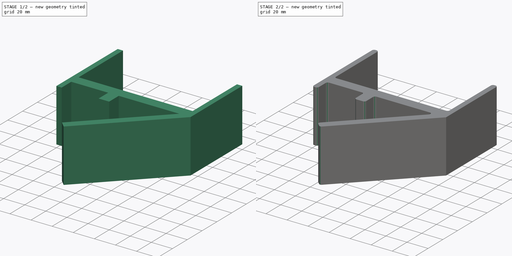
[diagram: build sequence overview — one tinted view per stage of 2, left to right]
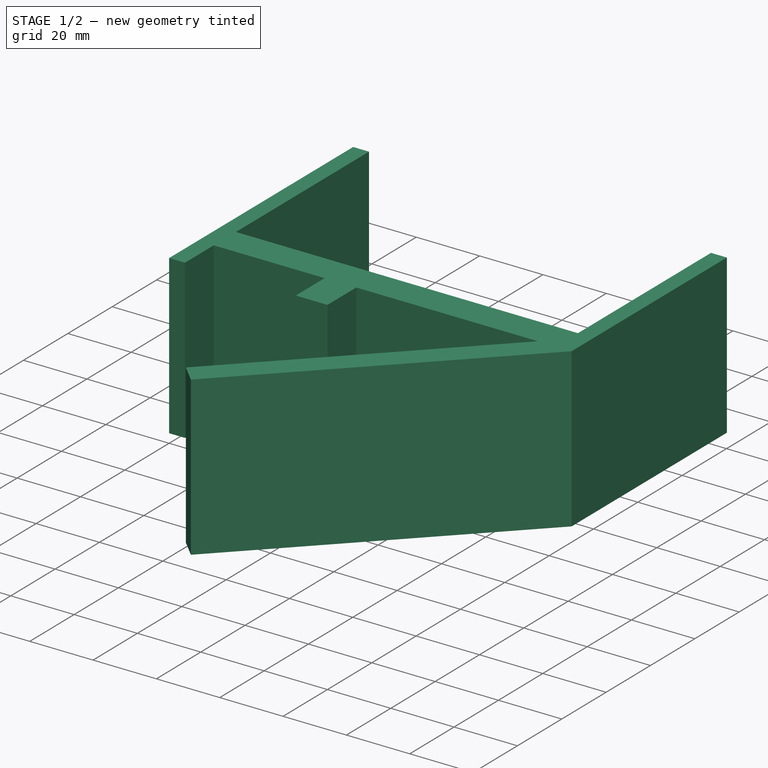
[diagram: stage 1 of 2 — iso view after this stage's code; geometry added in this stage tinted green]
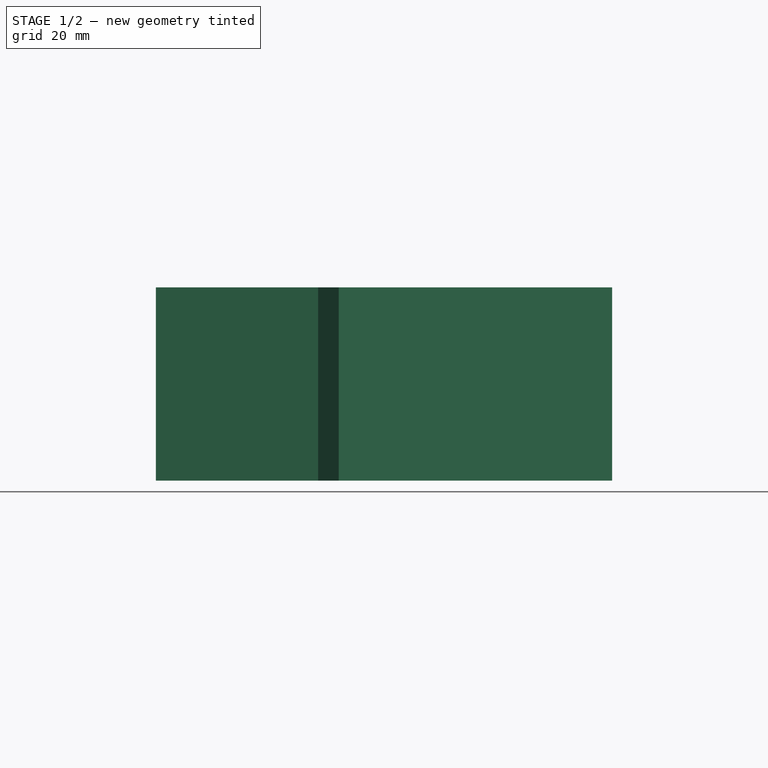
[diagram: stage 1 of 2 — front view after this stage's code; geometry added in this stage tinted green]
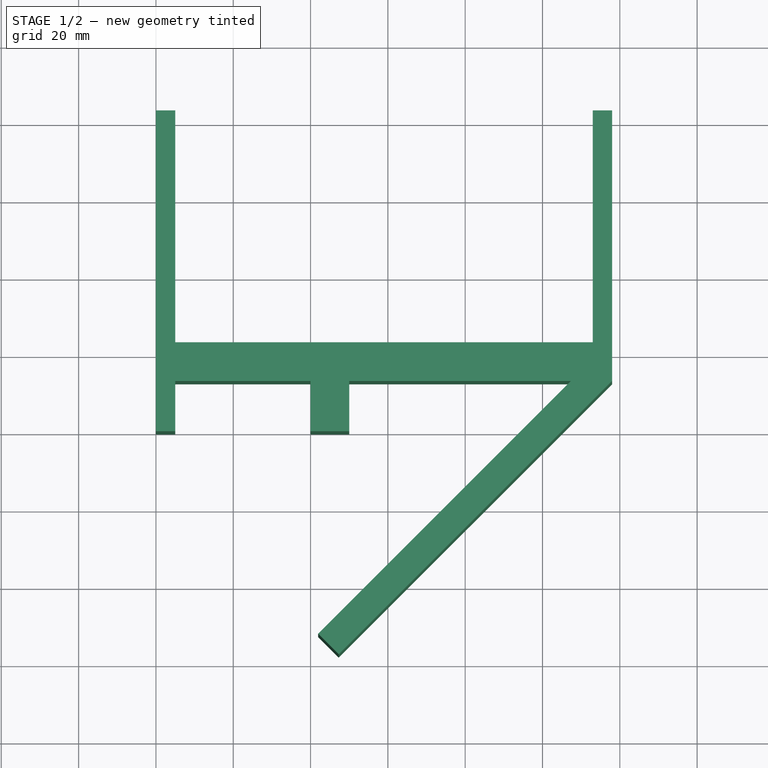
[diagram: stage 1 of 2 — top view after this stage's code; geometry added in this stage tinted green]
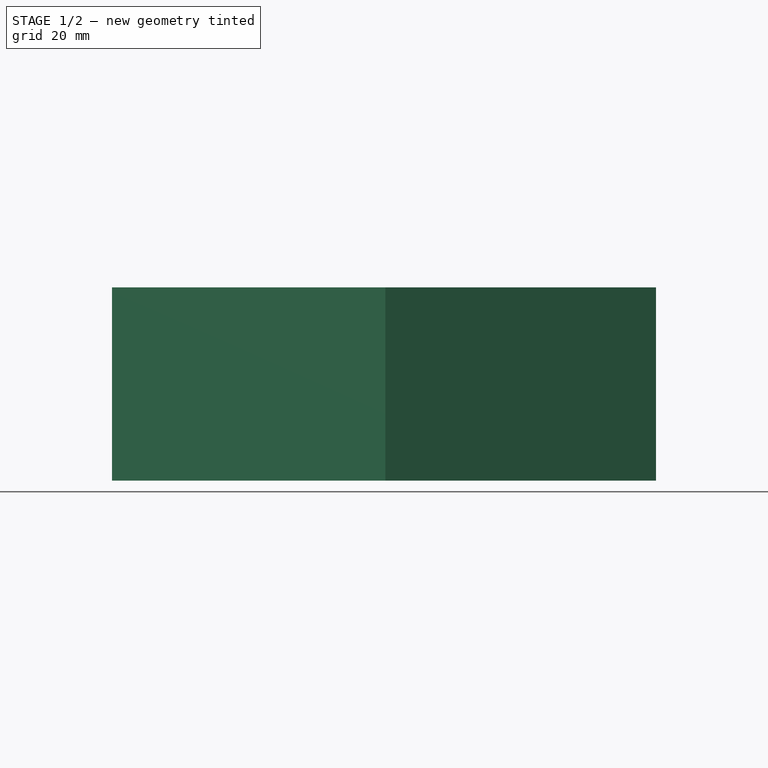
[diagram: stage 1 of 2 — right view after this stage's code; geometry added in this stage tinted green]
FCSTD DOCUMENT  (FreeCAD 1.0R1.0.1)
Label: TV_Soundbar
License: All rights reserved
LicenseURL: http://en.wikipedia.org/wiki/All_rights_reserved
objects: Sketcher::SketchObject×1, PartDesign::Pad×1, PartDesign::Body×1, Part::Box×1, Part::MultiFuse×1, Part::Fillet×1
note: 9 computed .brp shape members not serialized (recipe doc carries the construction recipe); baked Part::Feature solids carry a one-line shape summary decoded from their .brp

FEATURE [Sketcher::SketchObject] Sketch
  ArcFitTolerance = 1e-06
  AttachmentSupport = -> [XY_Plane]
  FullyConstrained = true
  MakeInternals = false
  MapMode = 5
  expr: Constraints[36] = 100
  sketch-geometry (13):
    g0: LineSegment StartX=0 StartY=0 StartZ=0 EndX=0 EndY=83 EndZ=0
    g1: LineSegment StartX=0 StartY=83 StartZ=0 EndX=5 EndY=83 EndZ=0
    g2: LineSegment StartX=5 StartY=83 StartZ=0 EndX=5 EndY=23 EndZ=0
    g3: LineSegment StartX=5 StartY=23 StartZ=0 EndX=113 EndY=23 EndZ=0
    g4: LineSegment StartX=113 StartY=23 StartZ=0 EndX=113 EndY=83 EndZ=0
    g5: LineSegment StartX=113 StartY=83 StartZ=0 EndX=118 EndY=83 EndZ=0
    g6: LineSegment StartX=118 StartY=83 StartZ=0 EndX=118 EndY=13 EndZ=0
    g7: LineSegment StartX=118 StartY=13 StartZ=0 EndX=47.2893 EndY=-57.7107 EndZ=0
    g8: LineSegment StartX=47.2893 StartY=-57.7107 StartZ=0 EndX=41.9593 EndY=-52.3807 EndZ=0
    g9: LineSegment StartX=41.9593 StartY=-52.3807 StartZ=0 EndX=107.34 EndY=13 EndZ=0
    g10: LineSegment StartX=107.34 StartY=13 StartZ=0 EndX=5 EndY=13 EndZ=0
    g11: LineSegment StartX=5 StartY=13 StartZ=0 EndX=5 EndY=0 EndZ=0
    g12: LineSegment StartX=5 StartY=0 StartZ=0 EndX=0 EndY=0 EndZ=0
  constraints (38):
    c: Coincident(g-1,g0)
    c: PointOnObject(g0,g-2)
    c: Coincident(g0,g1)
    c: Horizontal(g1)
    c: Coincident(g1,g2)
    c: Vertical(g2)
    c: Coincident(g2,g3)
    c: Horizontal(g3)
    c: Coincident(g3,g4)
    c: Vertical(g4)
    c: Coincident(g4,g5)
    c: Horizontal(g5)
    c: Coincident(g5,g6)
    c: Vertical(g6)
    c: Coincident(g6,g7)
    c: Coincident(g7,g8)
    c: Coincident(g8,g9)
    c: Coincident(g9,g10)
    c: Horizontal(g10)
    c: Coincident(g10,g11)
    c: PointOnObject(g11,g-1)
    c: Vertical(g11)
    c: Coincident(g11,g12)
    c: Coincident(g12,g0)
    c: DistanceX(g1,g1) = 5
    c: DistanceX(g5,g5) = 5
    c: DistanceX(g3,g3) = 108
    c: DistanceY(g4,g4) = 60
    c: DistanceY(g2,g2) = 60
    c: DistanceY(g0,g0) = 83
    c: DistanceY(g6,g6) = 70
    c: DistanceY(g11,g11) = 13
    c: DistanceX(g12,g12) = 5
    c: Angle(g6,g7) = 2.35619
    c: Angle(g10,g9) = 0.785398
    c: Angle(g7,g8) = 1.5708
    c: Distance(g7) = 100
    c: DistanceX(g10,g10) = 102.34
FEATURE [PartDesign::Pad] Pad
  Direction = (0,0,1)
  Length = 50
  Length2 = 10
  Profile = -> Sketch
  ReferenceAxis = -> Sketch [N_Axis]
  Suppressed = false
  Type = 0
FEATURE [PartDesign::Body] Body
  AllowCompound = false
  Group = -> [Sketch,Pad]
  Origin = -> Origin
  Tip = -> Pad
FEATURE [Part::Box] Box  label="Cube"
  AttacherType = Attacher::AttachEngine3D
  Height = 50
  Length = 10
  Placement = pos=(40,0,0) rot=(0,0,1;0rad)
  Width = 17
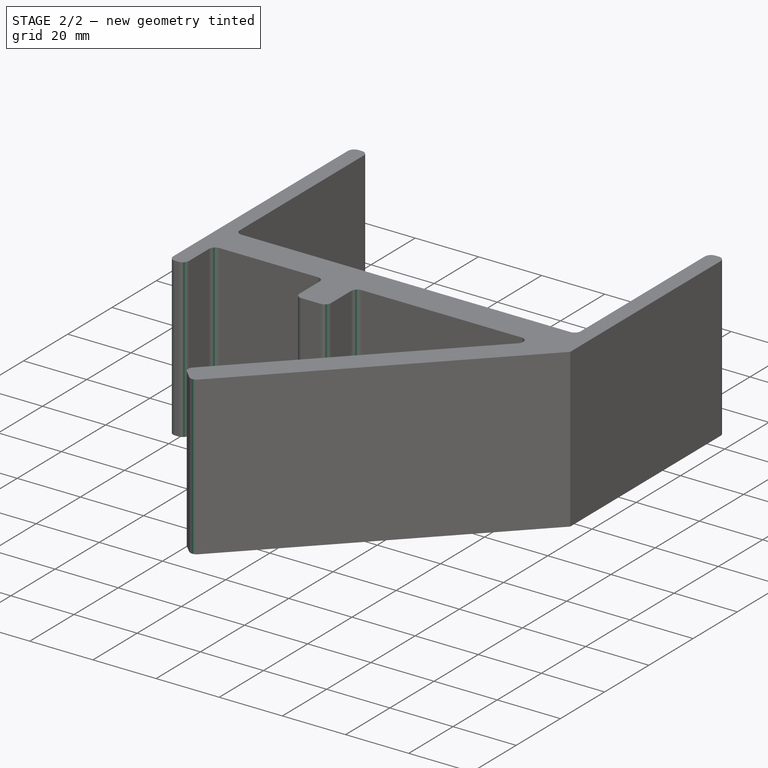
[diagram: stage 2 of 2 — iso view after this stage's code; geometry added in this stage tinted green]
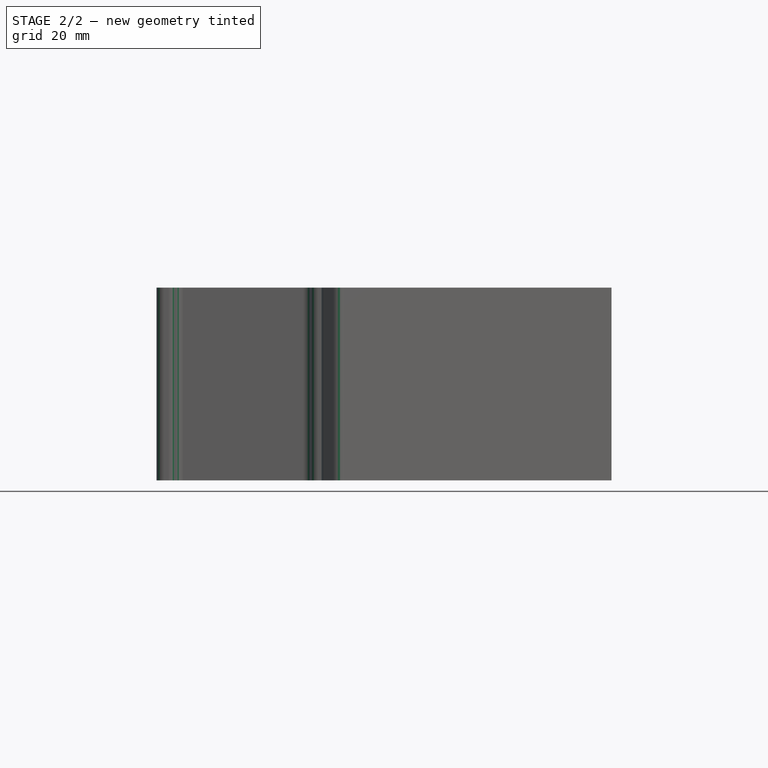
[diagram: stage 2 of 2 — front view after this stage's code; geometry added in this stage tinted green]
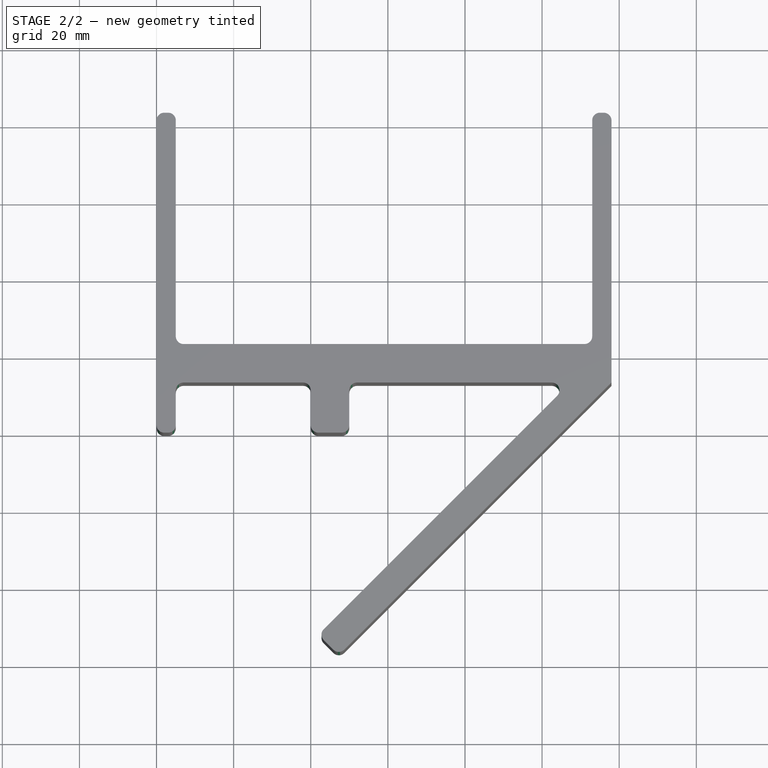
[diagram: stage 2 of 2 — top view after this stage's code; geometry added in this stage tinted green]
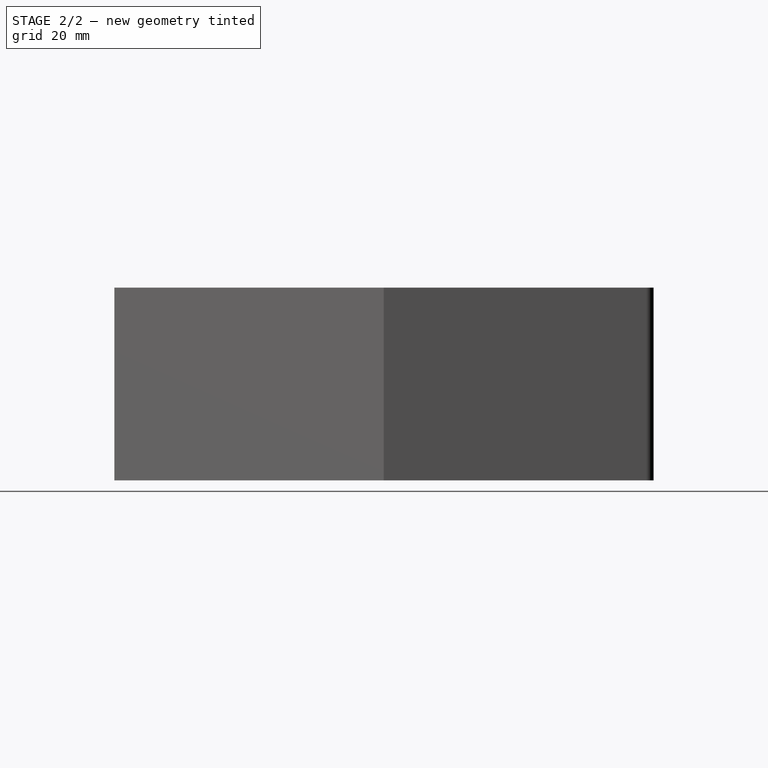
[diagram: stage 2 of 2 — right view after this stage's code; geometry added in this stage tinted green]
FEATURE [Part::MultiFuse] Fusion
  Shapes = -> [Body,Box]
FEATURE [Part::Fillet] Fillet
  Base = -> Fusion
  EdgeLinks = -> Fusion [Edge1,Edge2,Edge5,Edge8,Edge39,Edge40,Edge41,Edge42,Edge43,Edge45,Edge46,Edge47,Edge48,Edge50,Edge54,Edge58]
  Edges = 16 edges r=2: [Edge1,Edge2,Edge5,Edge8,Edge39,Edge40,Edge41,Edge42,Edge43,Edge45,Edge46,Edge47,Edge48,Edge50,Edge54,Edge58]
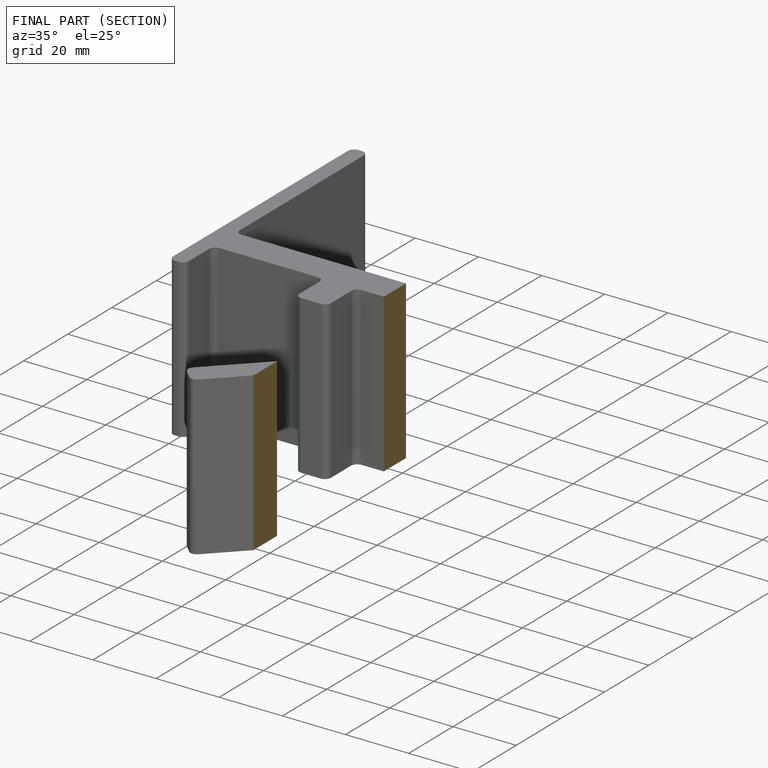
[diagram: finished part — half-section view (interior)]
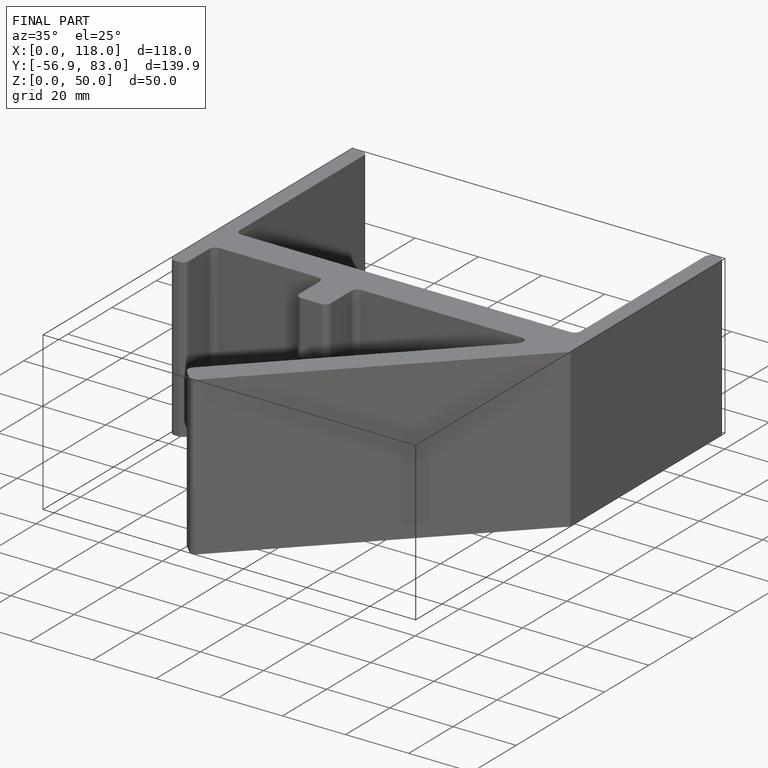
[diagram: finished part — iso view with bounding-box wireframe]
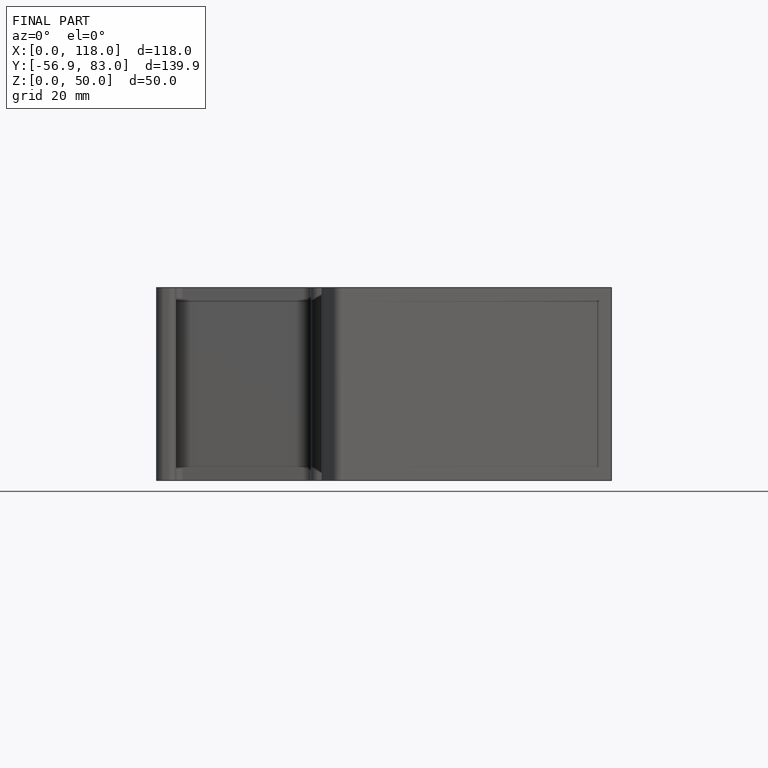
[diagram: finished part — front view with bounding-box wireframe]
